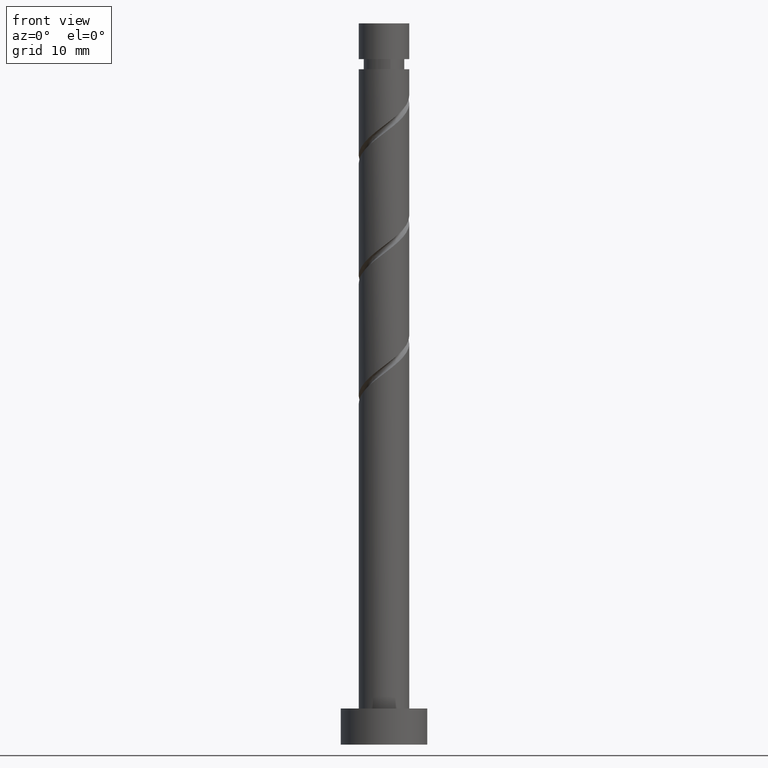
[diagram: clean part render]
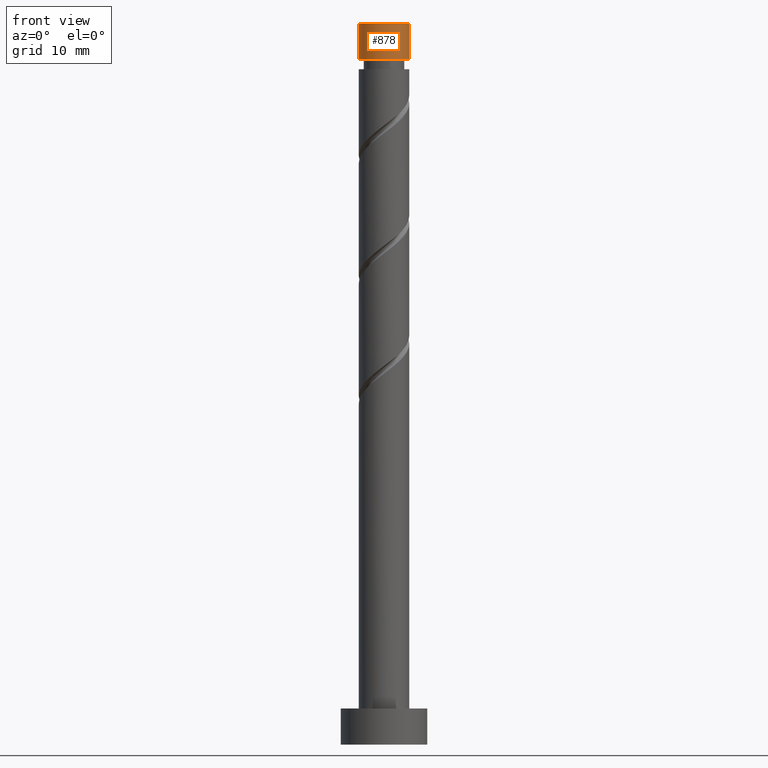
[diagram: same view with one face highlighted and labeled with its STEP entity id]
A machine part, front view. The second image highlights one B-rep face of the part: STEP entity #878.
In plain terms, the highlighted cylindrical surface (edge-blend (fillet) strip) has radius 3.5 mm, axis along (-0, -0, -1).
Its self-contained STEP definition (entity closure, byte-faithful):
#45 = CIRCLE ( 'NONE', #1293, 3.500000000000000888 ) ;
#112 = DIRECTION ( 'NONE',  ( -1.000000000000000000, 0.000000000000000000, 0.000000000000000000 ) ) ;
#158 = VECTOR ( 'NONE', #1416, 1000.000000000000000 ) ;
#188 = EDGE_LOOP ( 'NONE', ( #483, #827, #836, #1485 ) ) ;
#218 = CARTESIAN_POINT ( 'NONE',  ( 3.500000000000000000, 4.286263797015736595E-16, 100.0000000000000000 ) ) ;
#237 = CARTESIAN_POINT ( 'NONE',  ( 0.000000000000000000, 0.000000000000000000, 100.0000000000000000 ) ) ;
#320 = LINE ( 'NONE', #218, #818 ) ;
#377 = CARTESIAN_POINT ( 'NONE',  ( -3.500000000000000000, 0.000000000000000000, 100.0000000000000000 ) ) ;
#481 = CARTESIAN_POINT ( 'NONE',  ( -3.500000000000000000, 0.000000000000000000, 100.0000000000000000 ) ) ;
#483 = ORIENTED_EDGE ( 'NONE', *, *, #999, .F. ) ;
#548 = EDGE_CURVE ( 'NONE', #572, #1166, #834, .T. ) ;
#572 = VERTEX_POINT ( 'NONE', #377 ) ;
#591 = VERTEX_POINT ( 'NONE', #1433 ) ;
#693 = CARTESIAN_POINT ( 'NONE',  ( -3.500000000000000888, 0.000000000000000000, 95.04504056463252937 ) ) ;
#818 = VECTOR ( 'NONE', #1017, 1000.000000000000000 ) ;
#827 = ORIENTED_EDGE ( 'NONE', *, *, #1286, .F. ) ;
#834 = LINE ( 'NONE', #481, #158 ) ;
#836 = ORIENTED_EDGE ( 'NONE', *, *, #548, .T. ) ;
#841 = CIRCLE ( 'NONE', #990, 3.500000000000000000 ) ;
#878 = ADVANCED_FACE ( 'NONE', ( #1265 ), #1486, .T. ) ;
#908 = DIRECTION ( 'NONE',  ( -0.000000000000000000, -0.000000000000000000, -1.000000000000000000 ) ) ;
#918 = EDGE_CURVE ( 'NONE', #1359, #1166, #45, .T. ) ;
#920 = AXIS2_PLACEMENT_3D ( 'NONE', #237, #1150, #112 ) ;
#927 = CARTESIAN_POINT ( 'NONE',  ( 0.000000000000000000, 0.000000000000000000, 95.04504056463252937 ) ) ;
#971 = CARTESIAN_POINT ( 'NONE',  ( 0.000000000000000000, 0.000000000000000000, 100.0000000000000000 ) ) ;
#990 = AXIS2_PLACEMENT_3D ( 'NONE', #971, #1332, #1221 ) ;
#999 = EDGE_CURVE ( 'NONE', #591, #1359, #320, .T. ) ;
#1017 = DIRECTION ( 'NONE',  ( -0.000000000000000000, -0.000000000000000000, -1.000000000000000000 ) ) ;
#1031 = CARTESIAN_POINT ( 'NONE',  ( 3.500000000000000888, 4.286263797015737088E-16, 95.04504056463252937 ) ) ;
#1150 = DIRECTION ( 'NONE',  ( -0.000000000000000000, -0.000000000000000000, -1.000000000000000000 ) ) ;
#1166 = VERTEX_POINT ( 'NONE', #693 ) ;
#1221 = DIRECTION ( 'NONE',  ( 1.000000000000000000, 0.000000000000000000, 0.000000000000000000 ) ) ;
#1259 = DIRECTION ( 'NONE',  ( -1.000000000000000000, 0.000000000000000000, 0.000000000000000000 ) ) ;
#1265 = FACE_OUTER_BOUND ( 'NONE', #188, .T. ) ;
#1286 = EDGE_CURVE ( 'NONE', #572, #591, #841, .T. ) ;
#1293 = AXIS2_PLACEMENT_3D ( 'NONE', #927, #908, #1259 ) ;
#1332 = DIRECTION ( 'NONE',  ( 0.000000000000000000, 0.000000000000000000, 1.000000000000000000 ) ) ;
#1359 = VERTEX_POINT ( 'NONE', #1031 ) ;
#1416 = DIRECTION ( 'NONE',  ( -0.000000000000000000, -0.000000000000000000, -1.000000000000000000 ) ) ;
#1433 = CARTESIAN_POINT ( 'NONE',  ( 3.500000000000000000, 4.286263797015736595E-16, 100.0000000000000000 ) ) ;
#1485 = ORIENTED_EDGE ( 'NONE', *, *, #918, .F. ) ;
#1486 = CYLINDRICAL_SURFACE ( 'NONE', #920, 3.500000000000000000 ) ;